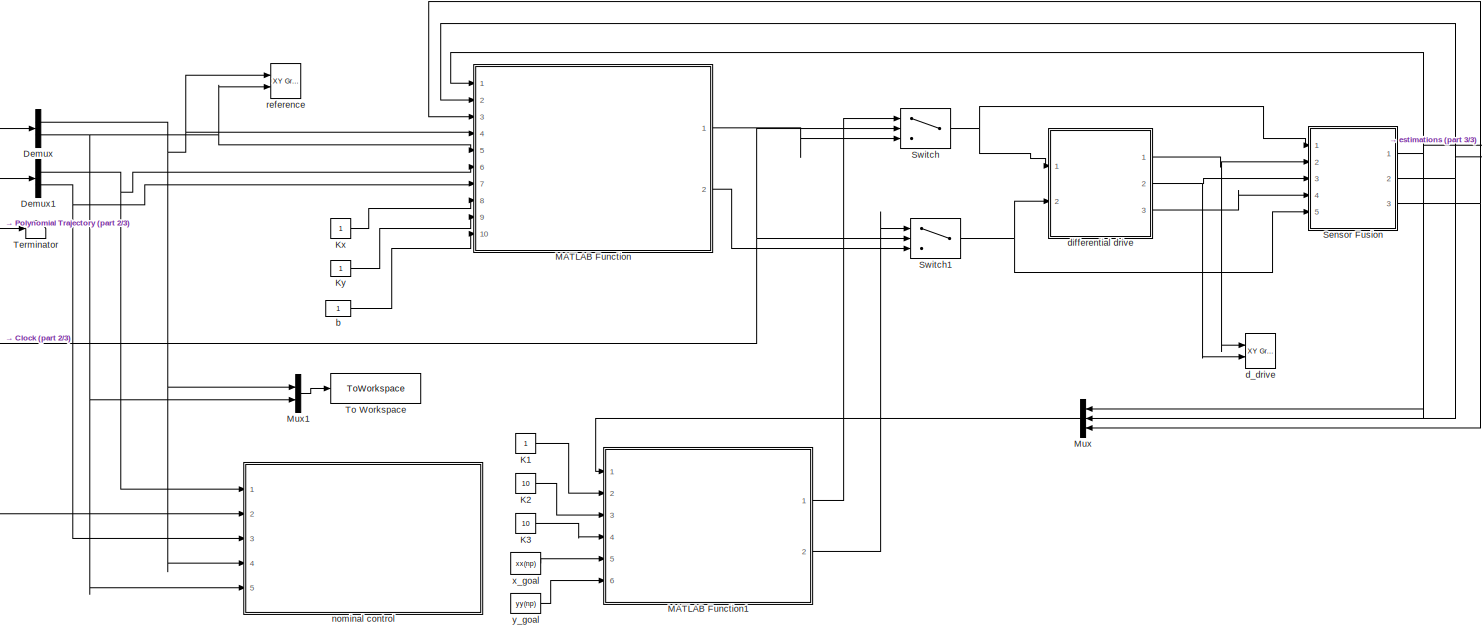
[diagram: root canvas - part 1/3, most of the canvas]
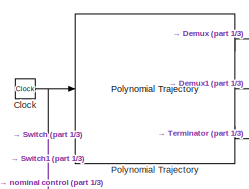
[diagram: root canvas - part 2/3, top left region]
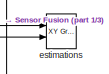
[diagram: root canvas - part 3/3, top right region]
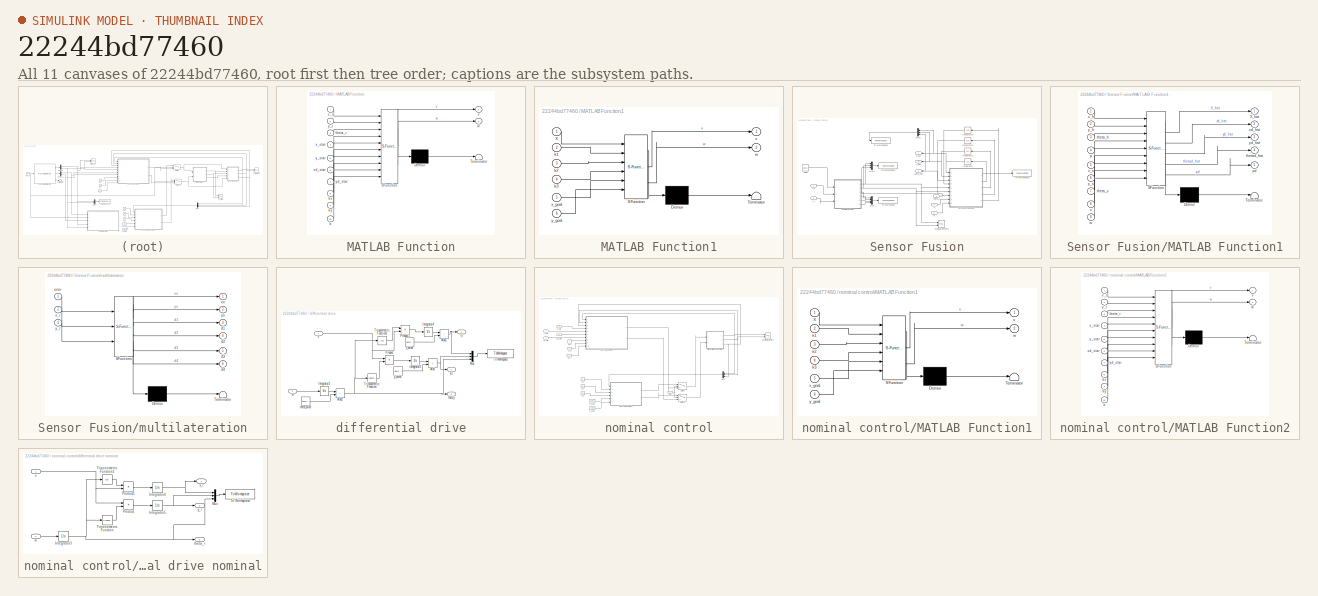
[diagram: thumbnail index - all 11 canvases of the model, root first then tree order]
MODEL slx_22244bd77460
KIND model
CONFIG AbsTol = auto
CONFIG EnableMultiTasking = off
CONFIG FixedStep = auto
CONFIG MaxStep = auto
CONFIG MinStep = auto
CONFIG RelTol = 1e-3
CONFIG SampleTimeConstraint = Unconstrained
CONFIG SolverName = VariableStepAuto
CONFIG StartTime = 0.0
CONFIG StopTime = tp
BLOCK [Clock] Clock
BLOCK [Demux] Demux
  Outputs = 2
  Ports = [1, 2]
BLOCK [Demux] Demux1
  Outputs = 2
  Ports = [1, 2]
BLOCK [Constant] K1
BLOCK [Constant] K2
  Value = 10
BLOCK [Constant] K3
  Value = 10
BLOCK [Constant] Kx
BLOCK [Constant] Ky
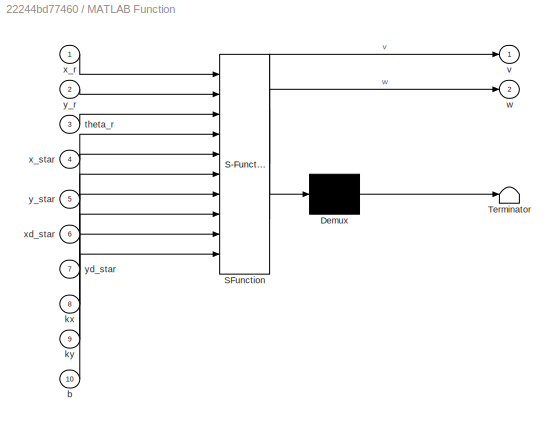
BLOCK [SubSystem] MATLAB Function
  ErrorFcn = Stateflow.Translate.translate
  PermitHierarchicalResolution = ExplicitOnly
  Ports = [10, 2]
  RequestExecContextInheritance = off
  SFBlockType = MATLAB Function
  TreatAsAtomicUnit = on
BLOCK [Demux] MATLAB Function/ Demux 
  Outputs = 1
  Ports = [1, 1]
BLOCK [S-Function] MATLAB Function/ SFunction 
  EnableBusSupport = on
  FunctionName = sf_sfun
  PortCounts = [10 3]
  Ports = [10, 3]
  SFcnIsStateOwnerBlock = off
  SFunctionDeploymentMode = off
  Tag = Stateflow S-Function 2
BLOCK [Terminator] MATLAB Function/ Terminator 
BLOCK [Inport] MATLAB Function/b
  Port = 10
BLOCK [Inport] MATLAB Function/kx
  Port = 8
BLOCK [Inport] MATLAB Function/ky
  Port = 9
BLOCK [Inport] MATLAB Function/theta_r
  Port = 3
BLOCK [Outport] MATLAB Function/v
BLOCK [Outport] MATLAB Function/w
  Port = 2
BLOCK [Inport] MATLAB Function/x_r
BLOCK [Inport] MATLAB Function/x_star
  Port = 4
BLOCK [Inport] MATLAB Function/xd_star
  Port = 6
BLOCK [Inport] MATLAB Function/y_r
  Port = 2
BLOCK [Inport] MATLAB Function/y_star
  Port = 5
BLOCK [Inport] MATLAB Function/yd_star
  Port = 7
BLOCK [SubSystem] MATLAB Function1
  ErrorFcn = Stateflow.Translate.translate
  PermitHierarchicalResolution = ExplicitOnly
  Ports = [6, 2]
  RequestExecContextInheritance = off
  SFBlockType = MATLAB Function
  TreatAsAtomicUnit = on
BLOCK [Demux] MATLAB Function1/ Demux 
  Outputs = 1
  Ports = [1, 1]
BLOCK [S-Function] MATLAB Function1/ SFunction 
  EnableBusSupport = on
  FunctionName = sf_sfun
  PortCounts = [6 3]
  Ports = [6, 3]
  SFcnIsStateOwnerBlock = off
  SFunctionDeploymentMode = off
  Tag = Stateflow S-Function 4
BLOCK [Terminator] MATLAB Function1/ Terminator 
BLOCK [Inport] MATLAB Function1/X
BLOCK [Inport] MATLAB Function1/k1
  Port = 2
BLOCK [Inport] MATLAB Function1/k2
  Port = 3
BLOCK [Inport] MATLAB Function1/k3
  Port = 4
BLOCK [Outport] MATLAB Function1/v
BLOCK [Outport] MATLAB Function1/w
  Port = 2
BLOCK [Inport] MATLAB Function1/x_goal
  Port = 5
BLOCK [Inport] MATLAB Function1/y_goal
  Port = 6
BLOCK [Mux] Mux
  DisplayOption = bar
  Inputs = 3
  Ports = [3, 1]
BLOCK [Mux] Mux1
  DisplayOption = bar
  Inputs = 2
  Ports = [2, 1]
BLOCK [Reference] Polynomial Trajectory  REF=robotcorelib/Polynomial Trajectory
  Ports = [1, 3]
  SourceBlock = robotcorelib/Polynomial Trajectory
  SourceProductBaseCode = NV,RO,RR,UV
  SourceType = robotics.slcore.internal.block.PolyTrajSys
BLOCK [SubSystem] Sensor Fusion
  Ports = [5, 3]
  RequestExecContextInheritance = off
BLOCK [Integrator] Sensor Fusion/Integrator
  InitialCondition = Xhat0(1)
  Ports = [1, 1]
BLOCK [Integrator] Sensor Fusion/Integrator1
  InitialCondition = Xhat0(2)
  Ports = [1, 1]
BLOCK [Integrator] Sensor Fusion/Integrator2
  InitialCondition = Xhat0(3)
  Ports = [1, 1]
BLOCK [Integrator] Sensor Fusion/Integrator3
  InitialCondition = P0
  Ports = [1, 1]
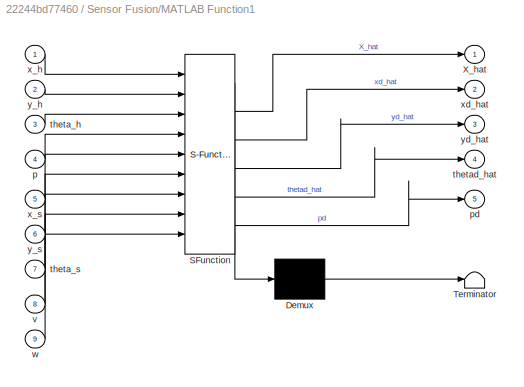
BLOCK [SubSystem] Sensor Fusion/MATLAB Function1
  ErrorFcn = Stateflow.Translate.translate
  PermitHierarchicalResolution = ExplicitOnly
  Ports = [9, 5]
  RequestExecContextInheritance = off
  SFBlockType = MATLAB Function
  TreatAsAtomicUnit = on
BLOCK [Demux] Sensor Fusion/MATLAB Function1/ Demux 
  Outputs = 1
  Ports = [1, 1]
BLOCK [S-Function] Sensor Fusion/MATLAB Function1/ SFunction 
  EnableBusSupport = on
  FunctionName = sf_sfun
  PortCounts = [9 6]
  Ports = [9, 6]
  SFcnIsStateOwnerBlock = off
  SFunctionDeploymentMode = off
  Tag = Stateflow S-Function 3
BLOCK [Terminator] Sensor Fusion/MATLAB Function1/ Terminator 
BLOCK [Outport] Sensor Fusion/MATLAB Function1/X_hat
BLOCK [Inport] Sensor Fusion/MATLAB Function1/p
  Port = 4
BLOCK [Outport] Sensor Fusion/MATLAB Function1/pd
  Port = 5
BLOCK [Inport] Sensor Fusion/MATLAB Function1/theta_h
  Port = 3
BLOCK [Inport] Sensor Fusion/MATLAB Function1/theta_s
  Port = 7
BLOCK [Outport] Sensor Fusion/MATLAB Function1/thetad_hat
  Port = 4
BLOCK [Inport] Sensor Fusion/MATLAB Function1/v
  Port = 8
BLOCK [Inport] Sensor Fusion/MATLAB Function1/w
  Port = 9
BLOCK [Inport] Sensor Fusion/MATLAB Function1/x_h
BLOCK [Inport] Sensor Fusion/MATLAB Function1/x_s
  Port = 5
BLOCK [Outport] Sensor Fusion/MATLAB Function1/xd_hat
  Port = 2
BLOCK [Inport] Sensor Fusion/MATLAB Function1/y_h
  Port = 2
BLOCK [Inport] Sensor Fusion/MATLAB Function1/y_s
  Port = 6
BLOCK [Outport] Sensor Fusion/MATLAB Function1/yd_hat
  Port = 3
BLOCK [Mux] Sensor Fusion/Mux
  DisplayOption = bar
  Ports = [4, 1]
BLOCK [Mux] Sensor Fusion/Mux1
  DisplayOption = bar
  Inputs = 3
  Ports = [3, 1]
BLOCK [Mux] Sensor Fusion/Mux2
  DisplayOption = bar
  Inputs = 3
  Ports = [3, 1]
BLOCK [ToWorkspace] Sensor Fusion/To Workspace
  FixptAsFi = on
  MaxDataPoints = inf
  Ports = [1]
  SampleTime = -1
  VariableName = Y
BLOCK [ToWorkspace] Sensor Fusion/To Workspace1
  FixptAsFi = on
  MaxDataPoints = inf
  Ports = [1]
  SampleTime = -1
  VariableName = X_sensores
BLOCK [ToWorkspace] Sensor Fusion/To Workspace2
  FixptAsFi = on
  MaxDataPoints = inf
  Ports = [1]
  SampleTime = -1
  VariableName = X_stimations
BLOCK [ToWorkspace] Sensor Fusion/To Workspace3
  FixptAsFi = on
  MaxDataPoints = inf
  Ports = [1]
  SampleTime = -1
  VariableName = X_filter
BLOCK [Reference] Sensor Fusion/measurements  REF=simulink/Sinks/XY Graph
  Ports = [2]
  SourceBlock = simulink/Sinks/XY Graph
  SourceProductBaseCode = SL
  SourceType = XY scope.
BLOCK [SubSystem] Sensor Fusion/multilateration
  ErrorFcn = Stateflow.Translate.translate
  PermitHierarchicalResolution = ExplicitOnly
  Ports = [3, 6]
  RequestExecContextInheritance = off
  SFBlockType = MATLAB Function
  TreatAsAtomicUnit = on
BLOCK [Demux] Sensor Fusion/multilateration/ Demux 
  Outputs = 1
  Ports = [1, 1]
BLOCK [S-Function] Sensor Fusion/multilateration/ SFunction 
  EnableBusSupport = on
  FunctionName = sf_sfun
  PortCounts = [3 7]
  Ports = [3, 7]
  SFcnIsStateOwnerBlock = off
  SFunctionDeploymentMode = off
  Tag = Stateflow S-Function 1
BLOCK [Terminator] Sensor Fusion/multilateration/ Terminator 
BLOCK [Outport] Sensor Fusion/multilateration/d1
  Port = 3
BLOCK [Outport] Sensor Fusion/multilateration/d2
  Port = 4
BLOCK [Outport] Sensor Fusion/multilateration/d3
  Port = 5
BLOCK [Outport] Sensor Fusion/multilateration/d4
  Port = 6
BLOCK [Inport] Sensor Fusion/multilateration/error
BLOCK [Inport] Sensor Fusion/multilateration/x_r
  Port = 2
BLOCK [Outport] Sensor Fusion/multilateration/xs
BLOCK [Inport] Sensor Fusion/multilateration/y_r
  Port = 3
BLOCK [Outport] Sensor Fusion/multilateration/ys
  Port = 2
BLOCK [Reference] Sensor Fusion/noise  REF=simulink/Sources/Band-Limited
White Noise
  Ports = [0, 1]
  SourceBlock = simulink/Sources/Band-Limited\nWhite Noise
  SourceProductBaseCode = SL
  SourceType = Band-Limited White Noise.
BLOCK [Outport] Sensor Fusion/theta_hat
  Port = 3
BLOCK [Inport] Sensor Fusion/theta_r
  Port = 4
BLOCK [Inport] Sensor Fusion/v
BLOCK [Inport] Sensor Fusion/w
  Port = 5
BLOCK [Outport] Sensor Fusion/x_hat
BLOCK [Inport] Sensor Fusion/x_r
  Port = 2
BLOCK [Outport] Sensor Fusion/y_hat
  Port = 2
BLOCK [Inport] Sensor Fusion/y_r
  Port = 3
BLOCK [Switch] Switch
  InputSameDT = off
  SaturateOnIntegerOverflow = off
  Threshold = ttotal(np-1)
BLOCK [Switch] Switch1
  InputSameDT = off
  SaturateOnIntegerOverflow = off
  Threshold = ttotal(np-1)
BLOCK [Terminator] Terminator
BLOCK [ToWorkspace] To Workspace
  FixptAsFi = on
  MaxDataPoints = inf
  Ports = [1]
  SampleTime = -1
  VariableName = X_star
BLOCK [Constant] b
BLOCK [Reference] d_drive  REF=simulink/Sinks/XY Graph
  Ports = [2]
  SourceBlock = simulink/Sinks/XY Graph
  SourceProductBaseCode = SL
  SourceType = XY scope.
BLOCK [SubSystem] differential drive
  Ports = [2, 3]
  RequestExecContextInheritance = off
BLOCK [Sum] differential drive/Add
  IconShape = rectangular
  Ports = [2, 1]
BLOCK [Sum] differential drive/Add1
  IconShape = rectangular
  Ports = [2, 1]
BLOCK [Sum] differential drive/Add2
  IconShape = rectangular
  Ports = [2, 1]
BLOCK [Integrator] differential drive/Integrator3
  InitialCondition = X0(3)
  Ports = [1, 1]
BLOCK [Integrator] differential drive/Integrator4
  InitialCondition = X0(1)
  Ports = [1, 1]
BLOCK [Integrator] differential drive/Integrator5
  InitialCondition = X0(2)
  Ports = [1, 1]
BLOCK [Mux] differential drive/Mux
  DisplayOption = bar
  Inputs = 3
  Ports = [3, 1]
BLOCK [Product] differential drive/Product
  Ports = [2, 1]
BLOCK [Product] differential drive/Product1
  Ports = [2, 1]
BLOCK [ToWorkspace] differential drive/To Workspace
  FixptAsFi = on
  MaxDataPoints = inf
  Ports = [1]
  SampleTime = -1
  VariableName = X_real
BLOCK [Trigonometry] differential drive/Trigonometric Function
  Ports = [1, 1]
BLOCK [Trigonometry] differential drive/Trigonometric Function1
  Operator = cos
  Ports = [1, 1]
BLOCK [Reference] differential drive/theta_noise  REF=simulink/Sources/Band-Limited
White Noise
  Ports = [0, 1]
  SourceBlock = simulink/Sources/Band-Limited\nWhite Noise
  SourceProductBaseCode = SL
  SourceType = Band-Limited White Noise.
BLOCK [Outport] differential drive/theta_r
  Port = 3
BLOCK [Inport] differential drive/v
BLOCK [Inport] differential drive/w
  Port = 2
BLOCK [Reference] differential drive/x_noise  REF=simulink/Sources/Band-Limited
White Noise
  Ports = [0, 1]
  SourceBlock = simulink/Sources/Band-Limited\nWhite Noise
  SourceProductBaseCode = SL
  SourceType = Band-Limited White Noise.
BLOCK [Outport] differential drive/x_r
BLOCK [Reference] differential drive/y_noise  REF=simulink/Sources/Band-Limited
White Noise
  Ports = [0, 1]
  SourceBlock = simulink/Sources/Band-Limited\nWhite Noise
  SourceProductBaseCode = SL
  SourceType = Band-Limited White Noise.
BLOCK [Outport] differential drive/y_r
  Port = 2
BLOCK [Reference] estimations  REF=simulink/Sinks/XY Graph
  Ports = [2]
  SourceBlock = simulink/Sinks/XY Graph
  SourceProductBaseCode = SL
  SourceType = XY scope.
BLOCK [SubSystem] nominal control
  Ports = [5]
  RequestExecContextInheritance = off
BLOCK [Reference] nominal control/ nominal trajectory  REF=simulink/Sinks/XY Graph
  Ports = [2]
  SourceBlock = simulink/Sinks/XY Graph
  SourceProductBaseCode = SL
  SourceType = XY scope.
BLOCK [Inport] nominal control/In2
  Port = 2
BLOCK [Constant] nominal control/K1
BLOCK [Constant] nominal control/K2
  Value = 10
BLOCK [Constant] nominal control/K3
  Value = 10
BLOCK [Constant] nominal control/Kx1
BLOCK [Constant] nominal control/Ky1
BLOCK [SubSystem] nominal control/MATLAB Function1
  ErrorFcn = Stateflow.Translate.translate
  PermitHierarchicalResolution = ExplicitOnly
  Ports = [6, 2]
  RequestExecContextInheritance = off
  SFBlockType = MATLAB Function
  TreatAsAtomicUnit = on
BLOCK [Demux] nominal control/MATLAB Function1/ Demux 
  Outputs = 1
  Ports = [1, 1]
BLOCK [S-Function] nominal control/MATLAB Function1/ SFunction 
  EnableBusSupport = on
  FunctionName = sf_sfun
  PortCounts = [6 3]
  Ports = [6, 3]
  SFcnIsStateOwnerBlock = off
  SFunctionDeploymentMode = off
  Tag = Stateflow S-Function 6
BLOCK [Terminator] nominal control/MATLAB Function1/ Terminator 
BLOCK [Inport] nominal control/MATLAB Function1/X
BLOCK [Inport] nominal control/MATLAB Function1/k1
  Port = 2
BLOCK [Inport] nominal control/MATLAB Function1/k2
  Port = 3
BLOCK [Inport] nominal control/MATLAB Function1/k3
  Port = 4
BLOCK [Outport] nominal control/MATLAB Function1/v
BLOCK [Outport] nominal control/MATLAB Function1/w
  Port = 2
BLOCK [Inport] nominal control/MATLAB Function1/x_goal
  Port = 5
BLOCK [Inport] nominal control/MATLAB Function1/y_goal
  Port = 6
BLOCK [SubSystem] nominal control/MATLAB Function2
  ErrorFcn = Stateflow.Translate.translate
  PermitHierarchicalResolution = ExplicitOnly
  Ports = [10, 2]
  RequestExecContextInheritance = off
  SFBlockType = MATLAB Function
  TreatAsAtomicUnit = on
BLOCK [Demux] nominal control/MATLAB Function2/ Demux 
  Outputs = 1
  Ports = [1, 1]
BLOCK [S-Function] nominal control/MATLAB Function2/ SFunction 
  EnableBusSupport = on
  FunctionName = sf_sfun
  PortCounts = [10 3]
  Ports = [10, 3]
  SFcnIsStateOwnerBlock = off
  SFunctionDeploymentMode = off
  Tag = Stateflow S-Function 5
BLOCK [Terminator] nominal control/MATLAB Function2/ Terminator 
BLOCK [Inport] nominal control/MATLAB Function2/b
  Port = 10
BLOCK [Inport] nominal control/MATLAB Function2/kx
  Port = 8
BLOCK [Inport] nominal control/MATLAB Function2/ky
  Port = 9
BLOCK [Inport] nominal control/MATLAB Function2/theta_r
  Port = 3
BLOCK [Outport] nominal control/MATLAB Function2/v
BLOCK [Outport] nominal control/MATLAB Function2/w
  Port = 2
BLOCK [Inport] nominal control/MATLAB Function2/x_r
BLOCK [Inport] nominal control/MATLAB Function2/x_star
  Port = 4
BLOCK [Inport] nominal control/MATLAB Function2/xd_star
  Port = 6
BLOCK [Inport] nominal control/MATLAB Function2/y_r
  Port = 2
BLOCK [Inport] nominal control/MATLAB Function2/y_star
  Port = 5
BLOCK [Inport] nominal control/MATLAB Function2/yd_star
  Port = 7
BLOCK [Mux] nominal control/Mux
  DisplayOption = bar
  Inputs = 3
  Ports = [3, 1]
BLOCK [Switch] nominal control/Switch
  InputSameDT = off
  NameLocation = top
  SaturateOnIntegerOverflow = off
  Threshold = ttotal(np-1)
BLOCK [Switch] nominal control/Switch1
  InputSameDT = off
  SaturateOnIntegerOverflow = off
  Threshold = ttotal(np-1)
BLOCK [Constant] nominal control/b1
BLOCK [SubSystem] nominal control/differential drive nominal
  Ports = [2, 3]
  RequestExecContextInheritance = off
BLOCK [Integrator] nominal control/differential drive nominal/Integrator3
  InitialCondition = X0(3)
  Ports = [1, 1]
BLOCK [Integrator] nominal control/differential drive nominal/Integrator4
  InitialCondition = X0(1)
  Ports = [1, 1]
BLOCK [Integrator] nominal control/differential drive nominal/Integrator5
  InitialCondition = X0(2)
  Ports = [1, 1]
BLOCK [Mux] nominal control/differential drive nominal/Mux
  DisplayOption = bar
  Inputs = 3
  Ports = [3, 1]
BLOCK [Product] nominal control/differential drive nominal/Product
  Ports = [2, 1]
BLOCK [Product] nominal control/differential drive nominal/Product1
  Ports = [2, 1]
BLOCK [ToWorkspace] nominal control/differential drive nominal/To Workspace
  FixptAsFi = on
  MaxDataPoints = inf
  Ports = [1]
  SampleTime = -1
  VariableName = X_nom
BLOCK [Trigonometry] nominal control/differential drive nominal/Trigonometric Function
  Ports = [1, 1]
BLOCK [Trigonometry] nominal control/differential drive nominal/Trigonometric Function1
  Operator = cos
  Ports = [1, 1]
BLOCK [Outport] nominal control/differential drive nominal/theta_r
  Port = 3
BLOCK [Inport] nominal control/differential drive nominal/v
BLOCK [Inport] nominal control/differential drive nominal/w
  Port = 2
BLOCK [Outport] nominal control/differential drive nominal/x_r
BLOCK [Outport] nominal control/differential drive nominal/y_r
  Port = 2
BLOCK [Constant] nominal control/x_goal
  Value = xx(np)
BLOCK [Inport] nominal control/x_star
  Port = 4
BLOCK [Inport] nominal control/xd_star
BLOCK [Constant] nominal control/y_goal
  Value = yy(np)
BLOCK [Inport] nominal control/y_star
  Port = 5
BLOCK [Inport] nominal control/yd_star
  Port = 3
BLOCK [Reference] reference  REF=simulink/Sinks/XY Graph
  Ports = [2]
  SourceBlock = simulink/Sinks/XY Graph
  SourceProductBaseCode = SL
  SourceType = XY scope.
BLOCK [Constant] x_goal
  Value = xx(np)
BLOCK [Constant] y_goal
  Value = yy(np)
NET Clock:1 -> Polynomial Trajectory:1, Switch1:2, Switch:2, nominal control:2
NET Demux1:1 -> MATLAB Function:6, nominal control:1
NET Demux1:2 -> MATLAB Function:7, nominal control:3
NET Demux:1 -> MATLAB Function:4, Mux1:1, nominal control:4, reference:1
NET Demux:2 -> MATLAB Function:5, Mux1:2, nominal control:5, reference:2
LINE K1:1 -> MATLAB Function1:2
LINE K2:1 -> MATLAB Function1:3
LINE K3:1 -> MATLAB Function1:4
LINE Kx:1 -> MATLAB Function:8
LINE Ky:1 -> MATLAB Function:9
LINE MATLAB Function1:1 -> Switch:1
LINE MATLAB Function1:2 -> Switch1:1
LINE MATLAB Function:1 -> Switch:3
LINE MATLAB Function:2 -> Switch1:3
LINE Mux1:1 -> To Workspace:1
LINE Mux:1 -> MATLAB Function1:1
LINE Polynomial Trajectory:1 -> Demux:1
LINE Polynomial Trajectory:2 -> Demux1:1
LINE Polynomial Trajectory:3 -> Terminator:1
NET Sensor Fusion/Integrator1:1 -> Sensor Fusion/MATLAB Function1:2, Sensor Fusion/Mux2:2, Sensor Fusion/y_hat:1
LINE Sensor Fusion/Integrator2:1 -> Sensor Fusion/MATLAB Function1:3
LINE Sensor Fusion/Integrator3:1 -> Sensor Fusion/MATLAB Function1:4
NET Sensor Fusion/Integrator:1 -> Sensor Fusion/MATLAB Function1:1, Sensor Fusion/Mux2:1, Sensor Fusion/x_hat:1
LINE Sensor Fusion/MATLAB Function1:1 -> Sensor Fusion/To Workspace3:1
LINE Sensor Fusion/MATLAB Function1:2 -> Sensor Fusion/Integrator:1
LINE Sensor Fusion/MATLAB Function1:3 -> Sensor Fusion/Integrator1:1
LINE Sensor Fusion/MATLAB Function1:4 -> Sensor Fusion/Integrator2:1
LINE Sensor Fusion/MATLAB Function1:5 -> Sensor Fusion/Integrator3:1
LINE Sensor Fusion/Mux1:1 -> Sensor Fusion/To Workspace1:1
LINE Sensor Fusion/Mux2:1 -> Sensor Fusion/To Workspace2:1
LINE Sensor Fusion/Mux:1 -> Sensor Fusion/To Workspace:1
NET Sensor Fusion/multilateration:1 -> Sensor Fusion/MATLAB Function1:5, Sensor Fusion/Mux1:1, Sensor Fusion/measurements:1
NET Sensor Fusion/multilateration:2 -> Sensor Fusion/MATLAB Function1:6, Sensor Fusion/Mux1:2, Sensor Fusion/measurements:2
LINE Sensor Fusion/multilateration:3 -> Sensor Fusion/Mux:1
LINE Sensor Fusion/multilateration:4 -> Sensor Fusion/Mux:2
LINE Sensor Fusion/multilateration:5 -> Sensor Fusion/Mux:3
LINE Sensor Fusion/multilateration:6 -> Sensor Fusion/Mux:4
LINE Sensor Fusion/noise:1 -> Sensor Fusion/multilateration:1
NET Sensor Fusion/theta_r:1 -> Sensor Fusion/MATLAB Function1:7, Sensor Fusion/Mux1:3, Sensor Fusion/Mux2:3, Sensor Fusion/theta_hat:1
LINE Sensor Fusion/v:1 -> Sensor Fusion/MATLAB Function1:8
LINE Sensor Fusion/w:1 -> Sensor Fusion/MATLAB Function1:9
LINE Sensor Fusion/x_r:1 -> Sensor Fusion/multilateration:2
LINE Sensor Fusion/y_r:1 -> Sensor Fusion/multilateration:3
NET Sensor Fusion:1 -> MATLAB Function:1, Mux:1, estimations:1
NET Sensor Fusion:2 -> MATLAB Function:2, Mux:2, estimations:2
NET Sensor Fusion:3 -> MATLAB Function:3, Mux:3
NET Switch1:1 -> Sensor Fusion:5, differential drive:2
NET Switch:1 -> Sensor Fusion:1, differential drive:1
LINE b:1 -> MATLAB Function:10
NET differential drive/Add1:1 -> differential drive/Mux:1, differential drive/x_r:1
NET differential drive/Add2:1 -> differential drive/Mux:3, differential drive/Trigonometric Function1:1, differential drive/Trigonometric Function:1, differential drive/theta_r:1
NET differential drive/Add:1 -> differential drive/Mux:2, differential drive/y_r:1
LINE differential drive/Integrator3:1 -> differential drive/Add2:1
LINE differential drive/Integrator4:1 -> differential drive/Add1:1
LINE differential drive/Integrator5:1 -> differential drive/Add:1
LINE differential drive/Mux:1 -> differential drive/To Workspace:1
LINE differential drive/Product1:1 -> differential drive/Integrator4:1
LINE differential drive/Product:1 -> differential drive/Integrator5:1
LINE differential drive/Trigonometric Function1:1 -> differential drive/Product1:1
LINE differential drive/Trigonometric Function:1 -> differential drive/Product:2
LINE differential drive/theta_noise:1 -> differential drive/Add2:2
NET differential drive/v:1 -> differential drive/Product1:2, differential drive/Product:1
LINE differential drive/w:1 -> differential drive/Integrator3:1
LINE differential drive/x_noise:1 -> differential drive/Add1:2
LINE differential drive/y_noise:1 -> differential drive/Add:2
NET differential drive:1 -> Sensor Fusion:2, d_drive:1
NET differential drive:2 -> Sensor Fusion:3, d_drive:2
LINE differential drive:3 -> Sensor Fusion:4
NET nominal control/In2:1 -> nominal control/Switch1:2, nominal control/Switch:2
LINE nominal control/K1:1 -> nominal control/MATLAB Function1:2
LINE nominal control/K2:1 -> nominal control/MATLAB Function1:3
LINE nominal control/K3:1 -> nominal control/MATLAB Function1:4
LINE nominal control/Kx1:1 -> nominal control/MATLAB Function2:8
LINE nominal control/Ky1:1 -> nominal control/MATLAB Function2:9
LINE nominal control/MATLAB Function1:1 -> nominal control/Switch:1
LINE nominal control/MATLAB Function1:2 -> nominal control/Switch1:1
LINE nominal control/MATLAB Function2:1 -> nominal control/Switch:3
LINE nominal control/MATLAB Function2:2 -> nominal control/Switch1:3
LINE nominal control/Mux:1 -> nominal control/MATLAB Function1:1
LINE nominal control/Switch1:1 -> nominal control/differential drive nominal:2
LINE nominal control/Switch:1 -> nominal control/differential drive nominal:1
LINE nominal control/b1:1 -> nominal control/MATLAB Function2:10
NET nominal control/differential drive nominal/Integrator3:1 -> nominal control/differential drive nominal/Mux:3, nominal control/differential drive nominal/Trigonometric Function1:1, nominal control/differential drive nominal/Trigonometric Function:1, nominal control/differential drive nominal/theta_r:1
NET nominal control/differential drive nominal/Integrator4:1 -> nominal control/differential drive nominal/Mux:1, nominal control/differential drive nominal/x_r:1
NET nominal control/differential drive nominal/Integrator5:1 -> nominal control/differential drive nominal/Mux:2, nominal control/differential drive nominal/y_r:1
LINE nominal control/differential drive nominal/Mux:1 -> nominal control/differential drive nominal/To Workspace:1
LINE nominal control/differential drive nominal/Product1:1 -> nominal control/differential drive nominal/Integrator4:1
LINE nominal control/differential drive nominal/Product:1 -> nominal control/differential drive nominal/Integrator5:1
LINE nominal control/differential drive nominal/Trigonometric Function1:1 -> nominal control/differential drive nominal/Product1:1
LINE nominal control/differential drive nominal/Trigonometric Function:1 -> nominal control/differential drive nominal/Product:2
NET nominal control/differential drive nominal/v:1 -> nominal control/differential drive nominal/Product1:2, nominal control/differential drive nominal/Product:1
LINE nominal control/differential drive nominal/w:1 -> nominal control/differential drive nominal/Integrator3:1
NET nominal control/differential drive nominal:1 -> nominal control/ nominal trajectory:1, nominal control/MATLAB Function2:1, nominal control/Mux:1
NET nominal control/differential drive nominal:2 -> nominal control/ nominal trajectory:2, nominal control/MATLAB Function2:2, nominal control/Mux:2
NET nominal control/differential drive nominal:3 -> nominal control/MATLAB Function2:3, nominal control/Mux:3
LINE nominal control/x_goal:1 -> nominal control/MATLAB Function1:5
LINE nominal control/x_star:1 -> nominal control/MATLAB Function2:4
LINE nominal control/xd_star:1 -> nominal control/MATLAB Function2:6
LINE nominal control/y_goal:1 -> nominal control/MATLAB Function1:6
LINE nominal control/y_star:1 -> nominal control/MATLAB Function2:5
LINE nominal control/yd_star:1 -> nominal control/MATLAB Function2:7
LINE x_goal:1 -> MATLAB Function1:5
LINE y_goal:1 -> MATLAB Function1:6
note: NET lines group one-source signal fan-out (src -> all destinations, sorted); 1:1 wires keep LINE
CHART nominal control/MATLAB Function1 states=1 transitions=1
  STATE_LABEL 'eML_blk_kernel()'
  STATE_LABEL 'SCRIPT:\nfunction [v,w] = posture_reg(X,k1,k2,k3,x_goal,y_goal)\nx=X(1);\ny=X(2);\ntheta=X(3);\n\nx_star=x_goal;\ny_star=y_goal;\ntheta_star=pi;\n\nex=x_star-x;\ney=y_star-y;\netheta=delta_angle(theta_star,theta);\n\nrho=norm([ex;ey]);\ngamma=delta_angle(atan2(ey,ex),theta);\ndelta=delta_angle(gamma,etheta);\n\nv=k1*rho*cos(gamma);\nw=k2*gamma+k1*(sin(gamma)*cos(gamma)/gamma)*(gamma+k3*delta);\nend\n\n'
CHART Sensor Fusion/multilateration states=1 transitions=1
  STATE_LABEL 'eML_blk_kernel()'
  STATE_LABEL "SCRIPT:\nfunction [xs,ys,d1,d2,d3,d4] = multilateration(error, x_r,y_r)\nrng(3000);\nN=4;% num beacons\n% Rmin=1; %radio max beacon\n% Rmax=70; %radio min beacon\nxReal=[x_r;y_r];\n%V1=normrnd(0,2.5,1,N)';\nsigma_0=1;\nf=@(theta,beacons)(sqrt((beacons(:,1)-theta(1)).^2+(beacons(:,2)-theta(2)).^2));\nbeacons=[24 25;\n         24 73;\n         67 75;\n         70 30];\nd=f(xReal,beacons);\ndhat=d+error*randn(4,1);...<+365ch>"
CHART MATLAB Function states=1 transitions=1
  STATE_LABEL 'eML_blk_kernel()'
  STATE_LABEL 'SCRIPT:\nfunction [v,w] = control_IO_L(x_r,y_r,theta_r,x_star,y_star,xd_star,yd_star,kx,ky,b)\nx=x_r;\ny=y_r;\ntheta=theta_r;\n\nxB=x+b*cos(theta);\nyB=y+b*sin(theta);\n\nxstar=x_star;\nystar=y_star;\n\nxBdotstar=xd_star;\nyBdotstar=yd_star;\n\n\nTinv=[\n     cos(theta)   sin(theta);\n    -sin(theta)/b cos(theta)/b\n    ];\nux=xBdotstar+kx*(xstar-xB);\nuy=yBdotstar+ky*(ystar-yB);\n\nvw=Tinv*[ux;uy];\nv=vw(1);\nw=vw(2);\n% ...<+55ch>'
CHART Sensor Fusion/MATLAB Function1 states=1 transitions=1
  STATE_LABEL 'eML_blk_kernel()'
  STATE_LABEL 'SCRIPT:\nfunction [X_hat,xd_hat,yd_hat,thetad_hat,pd] = EKF_CT(x_h,y_h,theta_h,p,x_s,y_s,theta_s, v,w)\n% sensor values\nx_m=x_s; \ny_m=y_s;\ntheta_m=theta_s;\n%______Inputs_________%\nu1=v;\nu2=w;\n%____covariances____%\nv1=10*eye(3);% in the model\nv2=0.1*eye(3);% in the measurements\npkk_1=p;\nC=[1 0 0;\n    0 1 0;\n    0 0 1];\n%measurements \nym=[x_m;y_m;theta_m];\n% kalman gain\nL=pkk_1*C*inv(C*pkk_1*C+v2);\n%s...<+454ch>'
CHART MATLAB Function1 states=1 transitions=1
  STATE_LABEL 'eML_blk_kernel()'
  STATE_LABEL 'SCRIPT:\nfunction [v,w] = posture_reg(X,k1,k2,k3,x_goal,y_goal)\nx=X(1);\ny=X(2);\ntheta=X(3);\n\nx_star=x_goal;\ny_star=y_goal;\ntheta_star=pi;\n\nex=x_star-x;\ney=y_star-y;\netheta=delta_angle(theta_star,theta);\n\nrho=norm([ex;ey]);\ngamma=delta_angle(atan2(ey,ex),theta);\ndelta=delta_angle(gamma,etheta);\n\nv=k1*rho*cos(gamma);\nw=k2*gamma+k1*(sin(gamma)*cos(gamma)/gamma)*(gamma+k3*delta);\nend\n\n'
CHART nominal control/MATLAB Function2 states=1 transitions=1
  STATE_LABEL 'eML_blk_kernel()'
  STATE_LABEL 'SCRIPT:\nfunction [v,w] = control_IO_L(x_r,y_r,theta_r,x_star,y_star,xd_star,yd_star,kx,ky,b)\nx=x_r;\ny=y_r;\ntheta=theta_r;\n\nxB=x+b*cos(theta);\nyB=y+b*sin(theta);\n\nxstar=x_star;\nystar=y_star;\n\nxBdotstar=xd_star;\nyBdotstar=yd_star;\n\n\nTinv=[\n     cos(theta)   sin(theta);\n    -sin(theta)/b cos(theta)/b\n    ];\nux=xBdotstar+kx*(xstar-xB);\nuy=yBdotstar+ky*(ystar-yB);\n\nvw=Tinv*[ux;uy];\nv=vw(1);\nw=vw(2);\n% ...<+55ch>'
CHART  states=0 transitions=0
CHART  states=0 transitions=0
CHART  states=0 transitions=0
CHART  states=0 transitions=0
CHART  states=0 transitions=0
CHART  states=0 transitions=0
